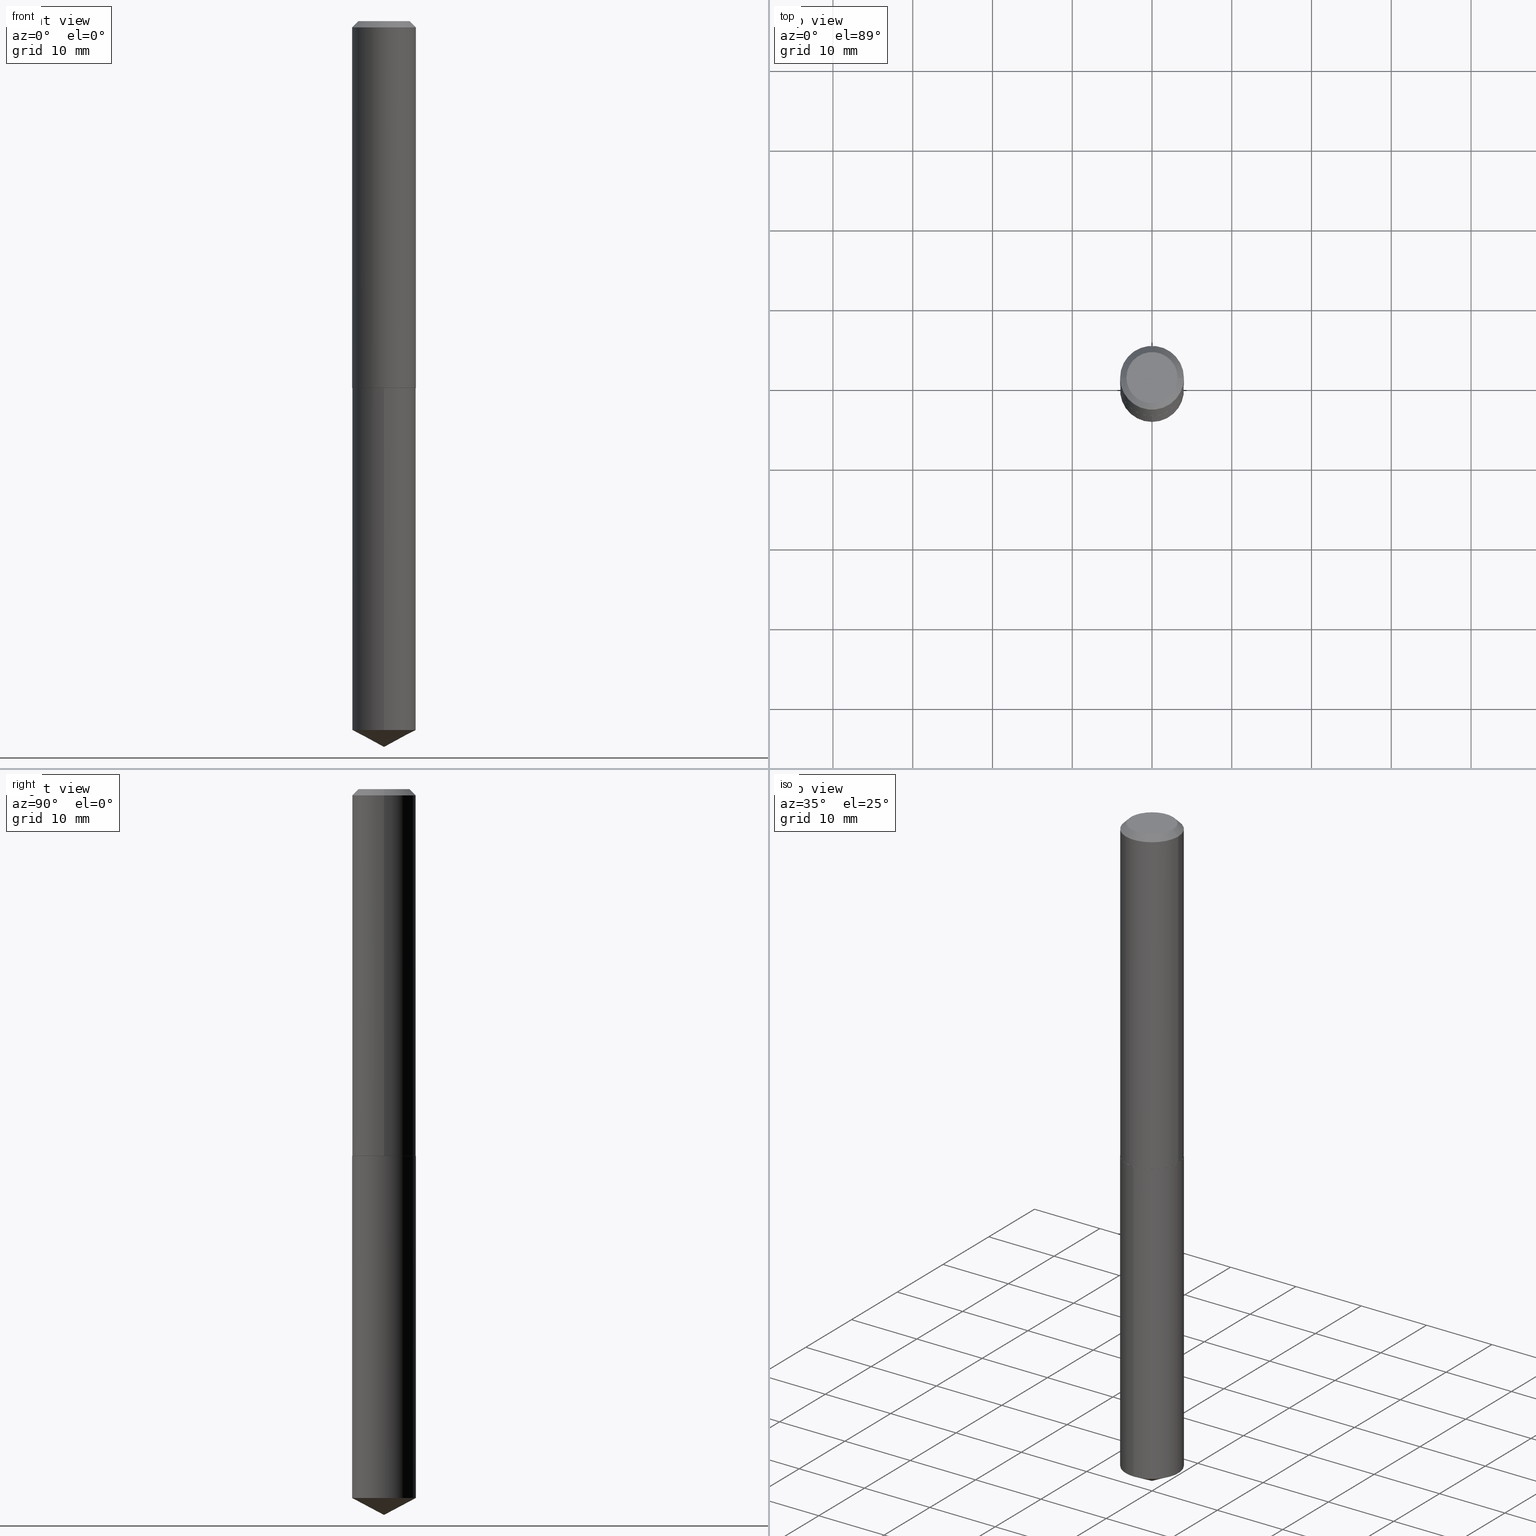
[diagram: canonical four-view strip — front | top / right | iso, engineering-drawing reading convention]
A machine part, canonical four-view strip (front | top / right | iso — engineering-drawing reading convention). The complete STEP part file that produces these views, byte-faithful:
ISO-10303-21;
HEADER;
FILE_DESCRIPTION (( 'STEP AP203' ),
    '1' );
FILE_NAME ('64850.STEP',
    '2024-04-23T10:54:50',
    ( '' ),
    ( '' ),
    'SwSTEP 2.0',
    'SolidWorks 2023',
    '' );
FILE_SCHEMA (( 'CONFIG_CONTROL_DESIGN' ));
ENDSEC;

DATA;
#1 = EDGE_CURVE ( 'NONE', #301, #15, #271, .T. ) ;
#2 = DIRECTION ( 'NONE',  ( 1.000000000000000000, -6.982962677686265922E-15, 0.000000000000000000 ) ) ;
#3 = DIRECTION ( 'NONE',  ( 6.273719981627760554E-15, 0.8829475928589289868, 0.4694715627858869200 ) ) ;
#4 = AXIS2_PLACEMENT_3D ( 'NONE', #295, #143, #266 ) ;
#5 = DIRECTION ( 'NONE',  ( -2.445398050251295473E-29, 3.491582665367583684E-15, 1.000000000000000000 ) ) ;
#6 = CARTESIAN_POINT ( 'NONE',  ( 8.761127594635315063E-29, -1.250929321521244063E-14, -3.582699999999999996 ) ) ;
#7 = ORIENTED_EDGE ( 'NONE', *, *, #20, .T. ) ;
#8 =( LENGTH_UNIT ( ) NAMED_UNIT ( * ) SI_UNIT ( $, .METRE. ) );
#9 = ORIENTED_EDGE ( 'NONE', *, *, #320, .T. ) ;
#10 = CONICAL_SURFACE ( 'NONE', #89, 74.04434902938329799, 1.082104136236485159 ) ;
#11 = CC_DESIGN_PERSON_AND_ORGANIZATION_ASSIGNMENT ( #318, #133, ( #210 ) ) ;
#12 = LINE ( 'NONE', #13, #100 ) ;
#13 = CARTESIAN_POINT ( 'NONE',  ( -0.1575000000000000011, 9.907078298967379852E-16, -0.03125000000000020123 ) ) ;
#14 = DIRECTION ( 'NONE',  ( 2.438088387897960049E-29, -3.491481338843145188E-15, -1.000000000000000000 ) ) ;
#15 = VERTEX_POINT ( 'NONE', #285 ) ;
#16 = VECTOR ( 'NONE', #313, 39.37007874015748143 ) ;
#17 = DATE_AND_TIME ( #182, #185 ) ;
#18 = DIRECTION ( 'NONE',  ( -2.445468806185136597E-29, 3.491481338843145583E-15, 1.000000000000000000 ) ) ;
#19 = ADVANCED_FACE ( 'NONE', ( #217 ), #130, .T. ) ;
#20 = EDGE_CURVE ( 'NONE', #50, #331, #246, .T. ) ;
#21 = PERSON_AND_ORGANIZATION ( #64, #221 ) ;
#22 = PERSON_AND_ORGANIZATION_ROLE ( 'creator' ) ;
#23 = AXIS2_PLACEMENT_3D ( 'NONE', #305, #269, #200 ) ;
#24 = LINE ( 'NONE', #327, #380 ) ;
#25 = FACE_OUTER_BOUND ( 'NONE', #163, .T. ) ;
#26 = ADVANCED_FACE ( 'NONE', ( #211 ), #354, .F. ) ;
#27 = ORIENTED_EDGE ( 'NONE', *, *, #1, .F. ) ;
#28 = CARTESIAN_POINT ( 'NONE',  ( 4.428988554881901583E-29, -6.323421852778821873E-15, -1.811100000000000154 ) ) ;
#29 = PLANE ( 'NONE',  #4 ) ;
#30 = CARTESIAN_POINT ( 'NONE',  ( 4.428988554881901583E-29, -6.323421852778821873E-15, -1.811100000000000154 ) ) ;
#31 = AXIS2_PLACEMENT_3D ( 'NONE', #87, #116, #234 ) ;
#32 = CARTESIAN_POINT ( 'NONE',  ( -1.179965205088274384E-46, 1.684677589683407292E-32, 4.825108388640570813E-18 ) ) ;
#33 = CARTESIAN_POINT ( 'NONE',  ( -0.1575000000000001954, -5.202571303287241189E-15, -1.810600000000000431 ) ) ;
#34 = VECTOR ( 'NONE', #3, 39.37007874015748143 ) ;
#35 = LOCAL_TIME ( 6, 54, 50.00000000000000000, #288 ) ;
#36 = CARTESIAN_POINT ( 'NONE',  ( 1.119104808822243392E-15, 0.1574999999999877887, -3.498955764513318023 ) ) ;
#37 = ORIENTED_EDGE ( 'NONE', *, *, #375, .T. ) ;
#38 = FACE_OUTER_BOUND ( 'NONE', #265, .T. ) ;
#39 = ORIENTED_EDGE ( 'NONE', *, *, #225, .F. ) ;
#40 = EDGE_CURVE ( 'NONE', #128, #203, #144, .T. ) ;
#41 = APPROVAL_DATE_TIME ( #45, #172 ) ;
#42 = CARTESIAN_POINT ( 'NONE',  ( 4.428988554881901583E-29, -6.323421852778821873E-15, -1.811100000000000154 ) ) ;
#43 = AXIS2_PLACEMENT_3D ( 'NONE', #30, #145, #388 ) ;
#44 = CIRCLE ( 'NONE', #113, 0.1262499999999999734 ) ;
#45 = DATE_AND_TIME ( #314, #35 ) ;
#46 = EDGE_LOOP ( 'NONE', ( #188, #372, #309, #376 ) ) ;
#47 = PERSON_AND_ORGANIZATION ( #64, #221 ) ;
#48 = DIRECTION ( 'NONE',  ( -2.445398050251295753E-29, 3.491582665367583684E-15, 1.000000000000000000 ) ) ;
#49 = APPROVAL_STATUS ( 'not_yet_approved' ) ;
#50 = VERTEX_POINT ( 'NONE', #349 ) ;
#51 = AXIS2_PLACEMENT_3D ( 'NONE', #268, #152, #123 ) ;
#52 = SHAPE_DEFINITION_REPRESENTATION ( #264, #177 ) ;
#53 = CARTESIAN_POINT ( 'NONE',  ( -0.1262499999999999734, 9.361534339773144209E-16, 4.825108388634215244E-18 ) ) ;
#54 = APPROVAL ( #129, 'UNSPECIFIED' ) ;
#55 = FACE_OUTER_BOUND ( 'NONE', #245, .T. ) ;
#56 = EDGE_CURVE ( 'NONE', #15, #384, #319, .T. ) ;
#57 = ORIENTED_EDGE ( 'NONE', *, *, #76, .T. ) ;
#58 = CIRCLE ( 'NONE', #51, 0.1575000000000000011 ) ;
#59 = CARTESIAN_POINT ( 'NONE',  ( 7.642090019328601786E-31, -1.091087918388490144E-16, -0.03125000000000020123 ) ) ;
#60 = SECURITY_CLASSIFICATION ( '', '', #159 ) ;
#61 = DIRECTION ( 'NONE',  ( -6.982962677686264344E-15, -1.000000000000000000, 3.469013325287953293E-15 ) ) ;
#62 = EDGE_CURVE ( 'NONE', #331, #128, #141, .T. ) ;
#63 = DIRECTION ( 'NONE',  ( 1.000000000000000000, -6.982962677686265922E-15, 0.000000000000000000 ) ) ;
#64 = PERSON ( 'UNSPECIFIED', 'UNSPECIFIED', 'UNSPECIFIED', ('UNSPECIFIED'), ('UNSPECIFIED'), ('UNSPECIFIED') ) ;
#65 = CARTESIAN_POINT ( 'NONE',  ( -5.899826025441371921E-47, 8.423387948417036461E-33, 2.412554194320285406E-18 ) ) ;
#66 = CIRCLE ( 'NONE', #353, 0.1575000000000001954 ) ;
#67 = PLANE ( 'NONE',  #259 ) ;
#68 = PRODUCT_RELATED_PRODUCT_CATEGORY ( 'detail', '', ( #210 ) ) ;
#69 = DIRECTION ( 'NONE',  ( 1.000000000000000000, -6.982962677686265922E-15, 0.000000000000000000 ) ) ;
#70 = ORIENTED_EDGE ( 'NONE', *, *, #343, .F. ) ;
#71 = CARTESIAN_POINT ( 'NONE',  ( 0.000000000000000000, 0.000000000000000000, 0.000000000000000000 ) ) ;
#72 = VERTEX_POINT ( 'NONE', #53 ) ;
#73 = COORDINATED_UNIVERSAL_TIME_OFFSET ( 5, 0, .BEHIND. ) ;
#74 = CIRCLE ( 'NONE', #236, 0.1575000000000000011 ) ;
#75 = APPROVAL_DATE_TIME ( #209, #54 ) ;
#76 = EDGE_CURVE ( 'NONE', #301, #83, #24, .T. ) ;
#77 = CARTESIAN_POINT ( 'NONE',  ( -1.099816621735542318E-15, -0.1575000000000063016, -1.811099999999999710 ) ) ;
#78 = ORIENTED_EDGE ( 'NONE', *, *, #306, .F. ) ;
#79 = DATE_AND_TIME ( #280, #132 ) ;
#80 = APPLICATION_CONTEXT ( 'configuration controlled 3d designs of mechanical parts and assemblies' ) ;
#81 = EDGE_CURVE ( 'NONE', #50, #201, #281, .T. ) ;
#82 = CARTESIAN_POINT ( 'NONE',  ( 4.427765820478809342E-29, -6.321676112109400370E-15, -1.810600000000000431 ) ) ;
#83 = VERTEX_POINT ( 'NONE', #223 ) ;
#84 = AXIS2_PLACEMENT_3D ( 'NONE', #317, #104, #160 ) ;
#85 = DIRECTION ( 'NONE',  ( -2.445468806185136597E-29, 3.491481338843145583E-15, 1.000000000000000000 ) ) ;
#86 = CARTESIAN_POINT ( 'NONE',  ( 0.1575000000000000011, -1.208925413574435989E-15, -0.03125000000000020123 ) ) ;
#87 = CARTESIAN_POINT ( 'NONE',  ( 7.642090019328601786E-31, -1.091087918388490144E-16, -0.03125000000000020123 ) ) ;
#88 = DIRECTION ( 'NONE',  ( -2.445468806185136597E-29, 3.491481338843145583E-15, 1.000000000000000000 ) ) ;
#89 = AXIS2_PLACEMENT_3D ( 'NONE', #108, #165, #359 ) ;
#90 = CIRCLE ( 'NONE', #272, 0.1575000000000000011 ) ;
#91 = DESIGN_CONTEXT ( 'detailed design', #358, 'design' ) ;
#92 = DIRECTION ( 'NONE',  ( 1.000000000000000000, -6.982962677686267499E-15, 4.876009584780190244E-29 ) ) ;
#93 = DIRECTION ( 'NONE',  ( -2.445468806185136597E-29, 3.491481338843145583E-15, 1.000000000000000000 ) ) ;
#94 =( NAMED_UNIT ( * ) PLANE_ANGLE_UNIT ( ) SI_UNIT ( $, .RADIAN. ) );
#95 = ORIENTED_EDGE ( 'NONE', *, *, #225, .T. ) ;
#96 = CONICAL_SURFACE ( 'NONE', #31, 0.1575000000000000011, 0.7853981633974450594 ) ;
#97 = ADVANCED_FACE ( 'NONE', ( #193 ), #121, .T. ) ;
#98 = PERSON_AND_ORGANIZATION_ROLE ( 'creator' ) ;
#99 = CLOSED_SHELL ( 'NONE', ( #151, #360, #97, #187, #119, #352, #287, #348 ) ) ;
#100 = VECTOR ( 'NONE', #373, 39.37007874015748143 ) ;
#101 = PERSON_AND_ORGANIZATION ( #64, #221 ) ;
#102 = ORIENTED_EDGE ( 'NONE', *, *, #252, .F. ) ;
#103 = COORDINATED_UNIVERSAL_TIME_OFFSET ( 5, 0, .BEHIND. ) ;
#104 = DIRECTION ( 'NONE',  ( -2.445398050251295473E-29, 3.491582665367583684E-15, 1.000000000000000000 ) ) ;
#105 = DIRECTION ( 'NONE',  ( -2.445398050251295473E-29, 3.491582665367583684E-15, 1.000000000000000000 ) ) ;
#106 = CIRCLE ( 'NONE', #316, 0.1262499999999999734 ) ;
#107 = LOCAL_TIME ( 6, 54, 50.00000000000000000, #189 ) ;
#108 = CARTESIAN_POINT ( 'NONE',  ( -8.751425804871398762E-28, 1.249547747605466795E-13, 35.78737874015747877 ) ) ;
#109 = DIRECTION ( 'NONE',  ( -6.982962677686264344E-15, -1.000000000000000000, 3.469013325287953293E-15 ) ) ;
#110 = ORIENTED_EDGE ( 'NONE', *, *, #131, .F. ) ;
#111 = DIRECTION ( 'NONE',  ( -6.982962677686264344E-15, -1.000000000000000000, 3.469013325287953293E-15 ) ) ;
#112 = CONICAL_SURFACE ( 'NONE', #220, 0.1575000000000001954, 0.7853981633976190313 ) ;
#113 = AXIS2_PLACEMENT_3D ( 'NONE', #334, #88, #92 ) ;
#114 = LINE ( 'NONE', #231, #340 ) ;
#115 = CARTESIAN_POINT ( 'NONE',  ( 0.1570000000000001394, -7.419746993175565558E-15, -1.811100000000000154 ) ) ;
#116 = DIRECTION ( 'NONE',  ( 2.445468806185136597E-29, -3.491481338843145583E-15, -1.000000000000000000 ) ) ;
#117 = ORIENTED_EDGE ( 'NONE', *, *, #20, .F. ) ;
#118 = ADVANCED_FACE ( 'NONE', ( #55 ), #10, .T. ) ;
#119 = ADVANCED_FACE ( 'NONE', ( #25 ), #112, .T. ) ;
#120 = LENGTH_MEASURE_WITH_UNIT ( LENGTH_MEASURE( 0.02539999999999999897 ), #8 );
#121 = CONICAL_SURFACE ( 'NONE', #229, 0.1575000000000001954, 0.7853981633976190313 ) ;
#122 = ORIENTED_EDGE ( 'NONE', *, *, #320, .F. ) ;
#123 = DIRECTION ( 'NONE',  ( 1.000000000000000000, -6.982962677686265922E-15, 0.000000000000000000 ) ) ;
#124 = CARTESIAN_POINT ( 'NONE',  ( -1.099816621735542318E-15, -0.1575000000000063016, -1.811099999999999710 ) ) ;
#125 = LINE ( 'NONE', #6, #330 ) ;
#126 = ORIENTED_EDGE ( 'NONE', *, *, #183, .T. ) ;
#127 = APPROVAL_DATE_TIME ( #17, #277 ) ;
#128 = VERTEX_POINT ( 'NONE', #329 ) ;
#129 = APPROVAL_STATUS ( 'not_yet_approved' ) ;
#130 = CYLINDRICAL_SURFACE ( 'NONE', #308, 0.1575000000000000011 ) ;
#131 = EDGE_CURVE ( 'NONE', #166, #301, #139, .T. ) ;
#132 = LOCAL_TIME ( 6, 54, 50.00000000000000000, #103 ) ;
#133 = PERSON_AND_ORGANIZATION_ROLE ( 'design_owner' ) ;
#134 = EDGE_LOOP ( 'NONE', ( #219, #70, #222, #374 ) ) ;
#135 = DIRECTION ( 'NONE',  ( -2.445468806185136597E-29, 3.491481338843145583E-15, 1.000000000000000000 ) ) ;
#136 = EDGE_CURVE ( 'NONE', #15, #301, #74, .T. ) ;
#137 = VECTOR ( 'NONE', #169, 39.37007874015748143 ) ;
#138 = PRODUCT_DEFINITION_FORMATION_WITH_SPECIFIED_SOURCE ( 'ANY', '', #210, .NOT_KNOWN. ) ;
#139 = LINE ( 'NONE', #262, #34 ) ;
#140 = EDGE_LOOP ( 'NONE', ( #298, #382, #328, #338 ) ) ;
#141 = LINE ( 'NONE', #355, #361 ) ;
#142 = ORIENTED_EDGE ( 'NONE', *, *, #260, .F. ) ;
#143 = DIRECTION ( 'NONE',  ( -2.438088387897960049E-29, 3.491481338843145188E-15, 1.000000000000000000 ) ) ;
#144 = CIRCLE ( 'NONE', #195, 0.1575000000000000011 ) ;
#145 = DIRECTION ( 'NONE',  ( -2.445468806185136597E-29, 3.491481338843145583E-15, 1.000000000000000000 ) ) ;
#146 = DIRECTION ( 'NONE',  ( 1.000000000000000000, -6.982962677686264344E-15, 0.000000000000000000 ) ) ;
#147 = EDGE_LOOP ( 'NONE', ( #184, #337 ) ) ;
#148 = CARTESIAN_POINT ( 'NONE',  ( 0.1262499999999999734, -1.027887549353260543E-15, 4.825108388647246856E-18 ) ) ;
#149 = CIRCLE ( 'NONE', #212, 0.1570000000000001394 ) ;
#150 =( GEOMETRIC_REPRESENTATION_CONTEXT ( 3 ) GLOBAL_UNCERTAINTY_ASSIGNED_CONTEXT ( ( #386 ) ) GLOBAL_UNIT_ASSIGNED_CONTEXT ( ( #307, #94, #322 ) ) REPRESENTATION_CONTEXT ( 'NONE', 'WORKASPACE' ) );
#151 = ADVANCED_FACE ( 'NONE', ( #263 ), #289, .T. ) ;
#152 = DIRECTION ( 'NONE',  ( -2.445468806185136597E-29, 3.491481338843145583E-15, 1.000000000000000000 ) ) ;
#153 = CARTESIAN_POINT ( 'NONE',  ( 0.000000000000000000, 0.000000000000000000, 0.000000000000000000 ) ) ;
#154 = ORIENTED_EDGE ( 'NONE', *, *, #375, .F. ) ;
#155 = PERSON_AND_ORGANIZATION ( #64, #221 ) ;
#156 = DIRECTION ( 'NONE',  ( 6.982962677686265922E-15, 1.000000000000000000, -3.491582665367583684E-15 ) ) ;
#157 = VECTOR ( 'NONE', #48, 39.37007874015748143 ) ;
#158 = APPROVAL_PERSON_ORGANIZATION ( #21, #54, #213 ) ;
#159 = SECURITY_CLASSIFICATION_LEVEL ( 'unclassified' ) ;
#160 = DIRECTION ( 'NONE',  ( -6.982962677686264344E-15, -1.000000000000000000, 3.469013325287953293E-15 ) ) ;
#161 = EDGE_CURVE ( 'NONE', #201, #254, #364, .T. ) ;
#162 = APPROVAL_STATUS ( 'not_yet_approved' ) ;
#163 = EDGE_LOOP ( 'NONE', ( #117, #293, #323, #345 ) ) ;
#164 = DIRECTION ( 'NONE',  ( -6.982962677686266711E-15, -1.000000000000000000, 3.541896320645572307E-15 ) ) ;
#165 = DIRECTION ( 'NONE',  ( -2.445398050251295473E-29, 3.491582665367583684E-15, 1.000000000000000000 ) ) ;
#166 = VERTEX_POINT ( 'NONE', #226 ) ;
#167 = AXIS2_PLACEMENT_3D ( 'NONE', #190, #326, #164 ) ;
#168 = CC_DESIGN_SECURITY_CLASSIFICATION ( #60, ( #138 ) ) ;
#169 = DIRECTION ( 'NONE',  ( 0.7071067811866682540, -2.468850131083521605E-15, 0.7071067811864267805 ) ) ;
#170 = DIRECTION ( 'NONE',  ( 2.445468806185136597E-29, -3.491481338843145583E-15, -1.000000000000000000 ) ) ;
#171 = FACE_OUTER_BOUND ( 'NONE', #325, .T. ) ;
#172 = APPROVAL ( #49, 'UNSPECIFIED' ) ;
#173 = AXIS2_PLACEMENT_3D ( 'NONE', #153, #93, #179 ) ;
#174 = DIRECTION ( 'NONE',  ( -2.445468806185136597E-29, 3.491481338843145583E-15, 1.000000000000000000 ) ) ;
#175 = DIRECTION ( 'NONE',  ( -1.000000000000000000, 6.982962677686265922E-15, -4.876176775795935793E-29 ) ) ;
#176 = FACE_OUTER_BOUND ( 'NONE', #178, .T. ) ;
#177 = ADVANCED_BREP_SHAPE_REPRESENTATION ( '64850', ( #274, #276, #341 ), #150 ) ;
#178 = EDGE_LOOP ( 'NONE', ( #357, #241, #215, #227 ) ) ;
#179 = DIRECTION ( 'NONE',  ( 1.000000000000000000, -6.982962677686267499E-15, 4.876176775795936353E-29 ) ) ;
#180 = APPROVAL_ROLE ( '' ) ;
#181 = ADVANCED_FACE ( 'NONE', ( #257 ), #356, .T. ) ;
#182 = CALENDAR_DATE ( 2024, 23, 4 ) ;
#183 = EDGE_CURVE ( 'NONE', #83, #384, #347, .T. ) ;
#184 = ORIENTED_EDGE ( 'NONE', *, *, #343, .T. ) ;
#185 = LOCAL_TIME ( 6, 54, 50.00000000000000000, #73 ) ;
#186 = EDGE_LOOP ( 'NONE', ( #279, #7, #122, #235 ) ) ;
#187 = ADVANCED_FACE ( 'NONE', ( #302 ), #29, .F. ) ;
#188 = ORIENTED_EDGE ( 'NONE', *, *, #76, .F. ) ;
#189 = COORDINATED_UNIVERSAL_TIME_OFFSET ( 5, 0, .BEHIND. ) ;
#190 = CARTESIAN_POINT ( 'NONE',  ( -8.751425804871398762E-28, 1.249547747605466795E-13, 35.78737874015747877 ) ) ;
#191 = DIRECTION ( 'NONE',  ( -2.445468806185136877E-29, 3.491481338843145188E-15, 1.000000000000000000 ) ) ;
#192 = CC_DESIGN_PERSON_AND_ORGANIZATION_ASSIGNMENT ( #101, #22, ( #138 ) ) ;
#193 = FACE_OUTER_BOUND ( 'NONE', #186, .T. ) ;
#194 = EDGE_LOOP ( 'NONE', ( #102, #261 ) ) ;
#195 = AXIS2_PLACEMENT_3D ( 'NONE', #283, #18, #378 ) ;
#196 = DIRECTION ( 'NONE',  ( -2.445398050251295473E-29, 3.491582665367583684E-15, 1.000000000000000000 ) ) ;
#197 = DIRECTION ( 'NONE',  ( 0.7071067811865452413, -7.319954787623248157E-15, -0.7071067811865497932 ) ) ;
#198 = CC_DESIGN_PERSON_AND_ORGANIZATION_ASSIGNMENT ( #155, #251, ( #138 ) ) ;
#199 = DIRECTION ( 'NONE',  ( -2.445468806185136597E-29, 3.491481338843145583E-15, 1.000000000000000000 ) ) ;
#200 = DIRECTION ( 'NONE',  ( 1.000000000000000000, -6.982962677686267499E-15, 4.876176775795936353E-29 ) ) ;
#201 = VERTEX_POINT ( 'NONE', #115 ) ;
#202 = FACE_OUTER_BOUND ( 'NONE', #134, .T. ) ;
#203 = VERTEX_POINT ( 'NONE', #86 ) ;
#204 = EDGE_CURVE ( 'NONE', #250, #203, #114, .T. ) ;
#205 = AXIS2_PLACEMENT_3D ( 'NONE', #333, #135, #63 ) ;
#206 = ORIENTED_EDGE ( 'NONE', *, *, #136, .T. ) ;
#207 = CALENDAR_DATE ( 2024, 23, 4 ) ;
#208 = PERSON_AND_ORGANIZATION ( #64, #221 ) ;
#209 = DATE_AND_TIME ( #207, #362 ) ;
#210 = PRODUCT ( '64850', '64850', '', ( #379 ) ) ;
#211 = FACE_OUTER_BOUND ( 'NONE', #218, .T. ) ;
#212 = AXIS2_PLACEMENT_3D ( 'NONE', #278, #273, #146 ) ;
#213 = APPROVAL_ROLE ( '' ) ;
#214 = EDGE_CURVE ( 'NONE', #331, #254, #368, .T. ) ;
#215 = ORIENTED_EDGE ( 'NONE', *, *, #306, .T. ) ;
#216 = PERSON_AND_ORGANIZATION ( #64, #221 ) ;
#217 = FACE_OUTER_BOUND ( 'NONE', #46, .T. ) ;
#218 = EDGE_LOOP ( 'NONE', ( #37, #126 ) ) ;
#219 = ORIENTED_EDGE ( 'NONE', *, *, #204, .F. ) ;
#220 = AXIS2_PLACEMENT_3D ( 'NONE', #82, #85, #2 ) ;
#221 = ORGANIZATION ( 'UNSPECIFIED', 'UNSPECIFIED', '' ) ;
#222 = ORIENTED_EDGE ( 'NONE', *, *, #339, .T. ) ;
#223 = CARTESIAN_POINT ( 'NONE',  ( 1.119104808822243392E-15, 0.1574999999999936728, -1.811100000000000820 ) ) ;
#224 = ADVANCED_FACE ( 'NONE', ( #171 ), #297, .T. ) ;
#225 = EDGE_CURVE ( 'NONE', #166, #15, #125, .T. ) ;
#226 = CARTESIAN_POINT ( 'NONE',  ( 8.761127594635315063E-29, -1.250929321521244221E-14, -3.582699999999999996 ) ) ;
#227 = ORIENTED_EDGE ( 'NONE', *, *, #40, .F. ) ;
#228 = CARTESIAN_POINT ( 'NONE',  ( 4.427765820478809342E-29, -6.321676112109400370E-15, -1.810600000000000431 ) ) ;
#229 = AXIS2_PLACEMENT_3D ( 'NONE', #228, #303, #233 ) ;
#230 = APPROVAL_PERSON_ORGANIZATION ( #47, #172, #180 ) ;
#231 = CARTESIAN_POINT ( 'NONE',  ( 0.1575000000000000011, -1.189637226487865274E-15, -0.03125000000000020123 ) ) ;
#232 = CC_DESIGN_PERSON_AND_ORGANIZATION_ASSIGNMENT ( #291, #350, ( #60 ) ) ;
#233 = DIRECTION ( 'NONE',  ( 1.000000000000000000, -6.982962677686265922E-15, 0.000000000000000000 ) ) ;
#234 = DIRECTION ( 'NONE',  ( -1.000000000000000000, 6.982962677686265922E-15, 0.000000000000000000 ) ) ;
#235 = ORIENTED_EDGE ( 'NONE', *, *, #161, .F. ) ;
#236 = AXIS2_PLACEMENT_3D ( 'NONE', #300, #390, #109 ) ;
#237 = CC_DESIGN_APPROVAL ( #277, ( #310 ) ) ;
#238 = DIRECTION ( 'NONE',  ( -2.445398050251295473E-29, 3.491582665367583684E-15, 1.000000000000000000 ) ) ;
#239 = CC_DESIGN_PERSON_AND_ORGANIZATION_ASSIGNMENT ( #216, #98, ( #310 ) ) ;
#240 = CYLINDRICAL_SURFACE ( 'NONE', #23, 0.1575000000000000844 ) ;
#241 = ORIENTED_EDGE ( 'NONE', *, *, #214, .T. ) ;
#242 = CARTESIAN_POINT ( 'NONE',  ( 4.427765820478809342E-29, -6.321676112109400370E-15, -1.810600000000000431 ) ) ;
#243 = DIRECTION ( 'NONE',  ( -6.982962677686264344E-15, -1.000000000000000000, 3.469013325287953293E-15 ) ) ;
#244 = VECTOR ( 'NONE', #366, 39.37007874015748143 ) ;
#245 = EDGE_LOOP ( 'NONE', ( #110, #95, #27 ) ) ;
#246 = LINE ( 'NONE', #351, #16 ) ;
#247 = DIRECTION ( 'NONE',  ( 1.000000000000000000, 0.000000000000000000, 0.000000000000000000 ) ) ;
#248 = APPLICATION_PROTOCOL_DEFINITION ( 'international standard', 'config_control_design', 1994, #80 ) ;
#249 = AXIS2_PLACEMENT_3D ( 'NONE', #332, #5, #61 ) ;
#250 = VERTEX_POINT ( 'NONE', #148 ) ;
#251 = PERSON_AND_ORGANIZATION_ROLE ( 'design_supplier' ) ;
#252 = EDGE_CURVE ( 'NONE', #201, #50, #149, .T. ) ;
#253 = EDGE_LOOP ( 'NONE', ( #206, #57, #154, #290 ) ) ;
#254 = VERTEX_POINT ( 'NONE', #311 ) ;
#255 = ORIENTED_EDGE ( 'NONE', *, *, #136, .F. ) ;
#256 = ORIENTED_EDGE ( 'NONE', *, *, #62, .T. ) ;
#257 = FACE_OUTER_BOUND ( 'NONE', #253, .T. ) ;
#258 = AXIS2_PLACEMENT_3D ( 'NONE', #42, #286, #156 ) ;
#259 = AXIS2_PLACEMENT_3D ( 'NONE', #65, #14, #175 ) ;
#260 = EDGE_CURVE ( 'NONE', #203, #128, #58, .T. ) ;
#261 = ORIENTED_EDGE ( 'NONE', *, *, #81, .F. ) ;
#262 = CARTESIAN_POINT ( 'NONE',  ( 8.761386134158445209E-29, -1.250892619027562269E-14, -3.582699999999999996 ) ) ;
#263 = FACE_OUTER_BOUND ( 'NONE', #140, .T. ) ;
#264 = PRODUCT_DEFINITION_SHAPE ( 'NONE', 'NONE',  #310 ) ;
#265 = EDGE_LOOP ( 'NONE', ( #9, #256, #142, #78 ) ) ;
#266 = DIRECTION ( 'NONE',  ( 1.000000000000000000, -6.982962677686265922E-15, 4.876176775795935793E-29 ) ) ;
#267 = CARTESIAN_POINT ( 'NONE',  ( 0.1575000000000001954, -7.421492733844987850E-15, -1.810600000000000431 ) ) ;
#268 = CARTESIAN_POINT ( 'NONE',  ( 7.642090019328601786E-31, -1.091087918388490144E-16, -0.03125000000000020123 ) ) ;
#269 = DIRECTION ( 'NONE',  ( -2.445468806185136597E-29, 3.491481338843145583E-15, 1.000000000000000000 ) ) ;
#270 = AXIS2_PLACEMENT_3D ( 'NONE', #28, #196, #111 ) ;
#271 = CIRCLE ( 'NONE', #84, 0.1575000000000000011 ) ;
#272 = AXIS2_PLACEMENT_3D ( 'NONE', #336, #238, #243 ) ;
#273 = DIRECTION ( 'NONE',  ( -2.445468806185136597E-29, 3.491481338843145583E-15, 1.000000000000000000 ) ) ;
#274 = MANIFOLD_SOLID_BREP ( 'Body-Move/Copy2[1]', #387 ) ;
#275 = LINE ( 'NONE', #370, #244 ) ;
#276 = MANIFOLD_SOLID_BREP ( 'Body-Move/Copy2[2]', #99 ) ;
#277 = APPROVAL ( #162, 'UNSPECIFIED' ) ;
#278 = CARTESIAN_POINT ( 'NONE',  ( 4.428988554881901583E-29, -6.323421852778821873E-15, -1.811100000000000154 ) ) ;
#279 = ORIENTED_EDGE ( 'NONE', *, *, #252, .T. ) ;
#280 = CALENDAR_DATE ( 2024, 23, 4 ) ;
#281 = CIRCLE ( 'NONE', #43, 0.1570000000000001394 ) ;
#282 = CC_DESIGN_APPROVAL ( #172, ( #138 ) ) ;
#283 = CARTESIAN_POINT ( 'NONE',  ( 7.642090019328601786E-31, -1.091087918388490144E-16, -0.03125000000000020123 ) ) ;
#284 = DATE_TIME_ROLE ( 'classification_date' ) ;
#285 = CARTESIAN_POINT ( 'NONE',  ( -1.099816621735501494E-15, -0.1575000000000122413, -3.498955764513316691 ) ) ;
#286 = DIRECTION ( 'NONE',  ( 2.445398050251295192E-29, -3.491582665367583684E-15, -1.000000000000000000 ) ) ;
#287 = ADVANCED_FACE ( 'NONE', ( #202 ), #96, .T. ) ;
#288 = COORDINATED_UNIVERSAL_TIME_OFFSET ( 5, 0, .BEHIND. ) ;
#289 = CONICAL_SURFACE ( 'NONE', #315, 0.1575000000000000011, 0.7853981633974450594 ) ;
#290 = ORIENTED_EDGE ( 'NONE', *, *, #56, .F. ) ;
#291 = PERSON_AND_ORGANIZATION ( #64, #221 ) ;
#292 = CARTESIAN_POINT ( 'NONE',  ( 4.428988554881901583E-29, -6.323421852778821873E-15, -1.811100000000000154 ) ) ;
#293 = ORIENTED_EDGE ( 'NONE', *, *, #81, .T. ) ;
#294 = CC_DESIGN_DATE_AND_TIME_ASSIGNMENT ( #383, #346, ( #310 ) ) ;
#295 = CARTESIAN_POINT ( 'NONE',  ( 4.428988554881901583E-29, -6.323421852778821873E-15, -1.811100000000000154 ) ) ;
#296 = DIRECTION ( 'NONE',  ( -2.445398050251295753E-29, 3.491582665367583684E-15, 1.000000000000000000 ) ) ;
#297 = CONICAL_SURFACE ( 'NONE', #167, 74.04434902938329799, 1.082104136236485159 ) ;
#298 = ORIENTED_EDGE ( 'NONE', *, *, #321, .F. ) ;
#299 = DIMENSIONAL_EXPONENTS ( 1.000000000000000000, 0.000000000000000000, 0.000000000000000000, 0.000000000000000000, 0.000000000000000000, 0.000000000000000000, 0.000000000000000000 ) ;
#300 = CARTESIAN_POINT ( 'NONE',  ( 8.556467750528176328E-29, -1.221670978179427015E-14, -3.498955764513317135 ) ) ;
#301 = VERTEX_POINT ( 'NONE', #36 ) ;
#302 = FACE_OUTER_BOUND ( 'NONE', #194, .T. ) ;
#303 = DIRECTION ( 'NONE',  ( -2.445468806185136597E-29, 3.491481338843145583E-15, 1.000000000000000000 ) ) ;
#304 = FACE_OUTER_BOUND ( 'NONE', #147, .T. ) ;
#305 = CARTESIAN_POINT ( 'NONE',  ( 0.000000000000000000, 0.000000000000000000, 0.000000000000000000 ) ) ;
#306 = EDGE_CURVE ( 'NONE', #254, #203, #275, .T. ) ;
#307 =( CONVERSION_BASED_UNIT ( 'INCH', #120 ) LENGTH_UNIT ( ) NAMED_UNIT ( #299 ) );
#308 = AXIS2_PLACEMENT_3D ( 'NONE', #292, #105, #385 ) ;
#309 = ORIENTED_EDGE ( 'NONE', *, *, #56, .T. ) ;
#310 = PRODUCT_DEFINITION ( 'UNKNOWN', '', #138, #91 ) ;
#311 = CARTESIAN_POINT ( 'NONE',  ( 0.1575000000000001954, -7.421492733844987850E-15, -1.810600000000000431 ) ) ;
#312 = CALENDAR_DATE ( 2024, 23, 4 ) ;
#313 = DIRECTION ( 'NONE',  ( -0.7071067811866682540, 7.493145998870789611E-15, 0.7071067811864267805 ) ) ;
#314 = CALENDAR_DATE ( 2024, 23, 4 ) ;
#315 = AXIS2_PLACEMENT_3D ( 'NONE', #59, #170, #363 ) ;
#316 = AXIS2_PLACEMENT_3D ( 'NONE', #32, #199, #335 ) ;
#317 = CARTESIAN_POINT ( 'NONE',  ( 8.556467750528176328E-29, -1.221670978179427015E-14, -3.498955764513317135 ) ) ;
#318 = PERSON_AND_ORGANIZATION ( #64, #221 ) ;
#319 = LINE ( 'NONE', #77, #157 ) ;
#320 = EDGE_CURVE ( 'NONE', #254, #331, #66, .T. ) ;
#321 = EDGE_CURVE ( 'NONE', #250, #72, #106, .T. ) ;
#322 =( NAMED_UNIT ( * ) SI_UNIT ( $, .STERADIAN. ) SOLID_ANGLE_UNIT ( ) );
#323 = ORIENTED_EDGE ( 'NONE', *, *, #161, .T. ) ;
#324 = COORDINATED_UNIVERSAL_TIME_OFFSET ( 5, 0, .BEHIND. ) ;
#325 = EDGE_LOOP ( 'NONE', ( #39, #367, #255 ) ) ;
#326 = DIRECTION ( 'NONE',  ( -2.445398050251295473E-29, 3.491582665367583684E-15, 1.000000000000000000 ) ) ;
#327 = CARTESIAN_POINT ( 'NONE',  ( 1.119104808822201977E-15, 0.1574999999999936728, -1.811100000000000820 ) ) ;
#328 = ORIENTED_EDGE ( 'NONE', *, *, #260, .T. ) ;
#329 = CARTESIAN_POINT ( 'NONE',  ( -0.1575000000000000011, -2.096287643151965949E-15, -0.03125000000000020123 ) ) ;
#330 = VECTOR ( 'NONE', #342, 39.37007874015748143 ) ;
#331 = VERTEX_POINT ( 'NONE', #33 ) ;
#332 = CARTESIAN_POINT ( 'NONE',  ( 4.428988554881901583E-29, -6.323421852778821873E-15, -1.811100000000000154 ) ) ;
#333 = CARTESIAN_POINT ( 'NONE',  ( 4.427765820478809342E-29, -6.321676112109400370E-15, -1.810600000000000431 ) ) ;
#334 = CARTESIAN_POINT ( 'NONE',  ( -1.179965205088274384E-46, 1.684677589683407292E-32, 4.825108388640570813E-18 ) ) ;
#335 = DIRECTION ( 'NONE',  ( 1.000000000000000000, -6.982962677686267499E-15, 4.876009584780190244E-29 ) ) ;
#336 = CARTESIAN_POINT ( 'NONE',  ( 4.428988554881901583E-29, -6.323421852778821873E-15, -1.811100000000000154 ) ) ;
#337 = ORIENTED_EDGE ( 'NONE', *, *, #321, .T. ) ;
#338 = ORIENTED_EDGE ( 'NONE', *, *, #339, .F. ) ;
#339 = EDGE_CURVE ( 'NONE', #72, #128, #12, .T. ) ;
#340 = VECTOR ( 'NONE', #197, 39.37007874015748143 ) ;
#341 = AXIS2_PLACEMENT_3D ( 'NONE', #71, #377, #247 ) ;
#342 = DIRECTION ( 'NONE',  ( -6.165590087286829718E-15, -0.8829475928589257672, 0.4694715627858931373 ) ) ;
#343 = EDGE_CURVE ( 'NONE', #72, #250, #44, .T. ) ;
#344 = APPLICATION_PROTOCOL_DEFINITION ( 'international standard', 'config_control_design', 1994, #358 ) ;
#345 = ORIENTED_EDGE ( 'NONE', *, *, #214, .F. ) ;
#346 = DATE_TIME_ROLE ( 'creation_date' ) ;
#347 = CIRCLE ( 'NONE', #249, 0.1575000000000000011 ) ;
#348 = ADVANCED_FACE ( 'NONE', ( #304 ), #67, .F. ) ;
#349 = CARTESIAN_POINT ( 'NONE',  ( -0.1570000000000001394, -5.205220530461352390E-15, -1.811100000000000154 ) ) ;
#350 = PERSON_AND_ORGANIZATION_ROLE ( 'classification_officer' ) ;
#351 = CARTESIAN_POINT ( 'NONE',  ( -0.1575000000000001954, -5.202571303287241189E-15, -1.810600000000000431 ) ) ;
#352 = ADVANCED_FACE ( 'NONE', ( #176 ), #240, .T. ) ;
#353 = AXIS2_PLACEMENT_3D ( 'NONE', #242, #174, #69 ) ;
#354 = PLANE ( 'NONE',  #258 ) ;
#355 = CARTESIAN_POINT ( 'NONE',  ( -0.1575000000000000844, 1.119104808822158392E-15, -7.747322767151481189E-30 ) ) ;
#356 = CYLINDRICAL_SURFACE ( 'NONE', #270, 0.1575000000000000011 ) ;
#357 = ORIENTED_EDGE ( 'NONE', *, *, #62, .F. ) ;
#358 = APPLICATION_CONTEXT ( 'configuration controlled 3d designs of mechanical parts and assemblies' ) ;
#359 = DIRECTION ( 'NONE',  ( -6.982962677686266711E-15, -1.000000000000000000, 3.541896320645572307E-15 ) ) ;
#360 = ADVANCED_FACE ( 'NONE', ( #38 ), #371, .T. ) ;
#361 = VECTOR ( 'NONE', #191, 39.37007874015748143 ) ;
#362 = LOCAL_TIME ( 6, 54, 50.00000000000000000, #324 ) ;
#363 = DIRECTION ( 'NONE',  ( -1.000000000000000000, 6.982962677686265922E-15, 0.000000000000000000 ) ) ;
#364 = LINE ( 'NONE', #267, #137 ) ;
#365 = CC_DESIGN_DATE_AND_TIME_ASSIGNMENT ( #79, #284, ( #60 ) ) ;
#366 = DIRECTION ( 'NONE',  ( -2.445468806185136877E-29, 3.491481338843145188E-15, 1.000000000000000000 ) ) ;
#367 = ORIENTED_EDGE ( 'NONE', *, *, #131, .T. ) ;
#368 = CIRCLE ( 'NONE', #205, 0.1575000000000001954 ) ;
#369 = CC_DESIGN_APPROVAL ( #54, ( #60 ) ) ;
#370 = CARTESIAN_POINT ( 'NONE',  ( 0.1575000000000000844, -1.099816621735587677E-15, 7.679978421878603638E-30 ) ) ;
#371 = CYLINDRICAL_SURFACE ( 'NONE', #173, 0.1575000000000000844 ) ;
#372 = ORIENTED_EDGE ( 'NONE', *, *, #1, .T. ) ;
#373 = DIRECTION ( 'NONE',  ( -0.7071067811865452413, 2.468850131082233000E-15, -0.7071067811865497932 ) ) ;
#374 = ORIENTED_EDGE ( 'NONE', *, *, #40, .T. ) ;
#375 = EDGE_CURVE ( 'NONE', #384, #83, #90, .T. ) ;
#376 = ORIENTED_EDGE ( 'NONE', *, *, #183, .F. ) ;
#377 = DIRECTION ( 'NONE',  ( 0.000000000000000000, 0.000000000000000000, 1.000000000000000000 ) ) ;
#378 = DIRECTION ( 'NONE',  ( 1.000000000000000000, -6.982962677686265922E-15, 0.000000000000000000 ) ) ;
#379 = MECHANICAL_CONTEXT ( 'NONE', #80, 'mechanical' ) ;
#380 = VECTOR ( 'NONE', #296, 39.37007874015748143 ) ;
#381 = APPROVAL_ROLE ( '' ) ;
#382 = ORIENTED_EDGE ( 'NONE', *, *, #204, .T. ) ;
#383 = DATE_AND_TIME ( #312, #107 ) ;
#384 = VERTEX_POINT ( 'NONE', #124 ) ;
#385 = DIRECTION ( 'NONE',  ( -6.982962677686264344E-15, -1.000000000000000000, 3.469013325287953293E-15 ) ) ;
#386 = UNCERTAINTY_MEASURE_WITH_UNIT (LENGTH_MEASURE( 1.000000000000000082E-05 ), #307, 'distance_accuracy_value', 'NONE');
#387 = CLOSED_SHELL ( 'NONE', ( #181, #224, #118, #19, #26 ) ) ;
#388 = DIRECTION ( 'NONE',  ( 1.000000000000000000, -6.982962677686264344E-15, 0.000000000000000000 ) ) ;
#389 = APPROVAL_PERSON_ORGANIZATION ( #208, #277, #381 ) ;
#390 = DIRECTION ( 'NONE',  ( -2.445398050251295473E-29, 3.491582665367583684E-15, 1.000000000000000000 ) ) ;
ENDSEC;
END-ISO-10303-21;
